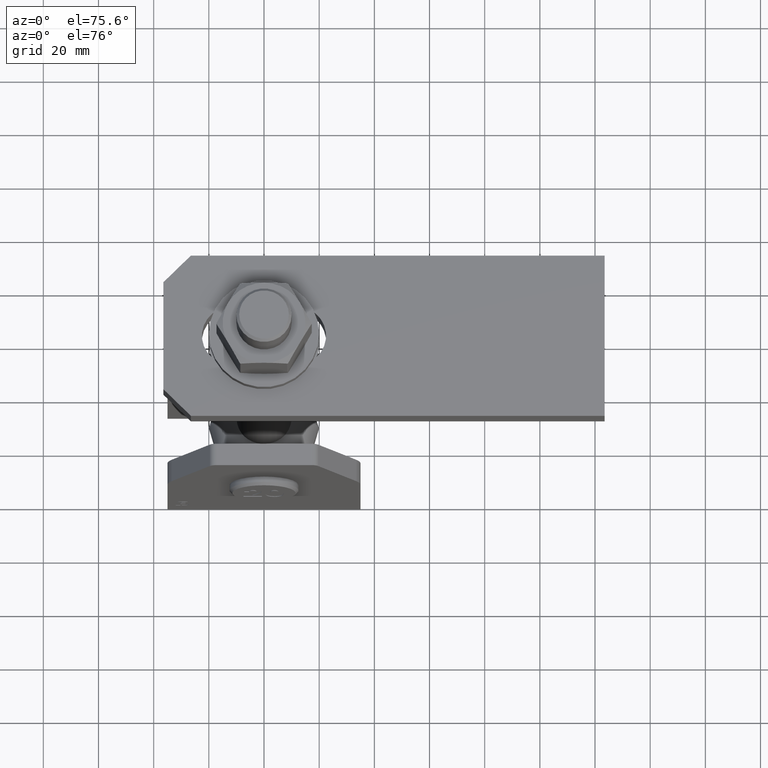
[diagram: clean part render]
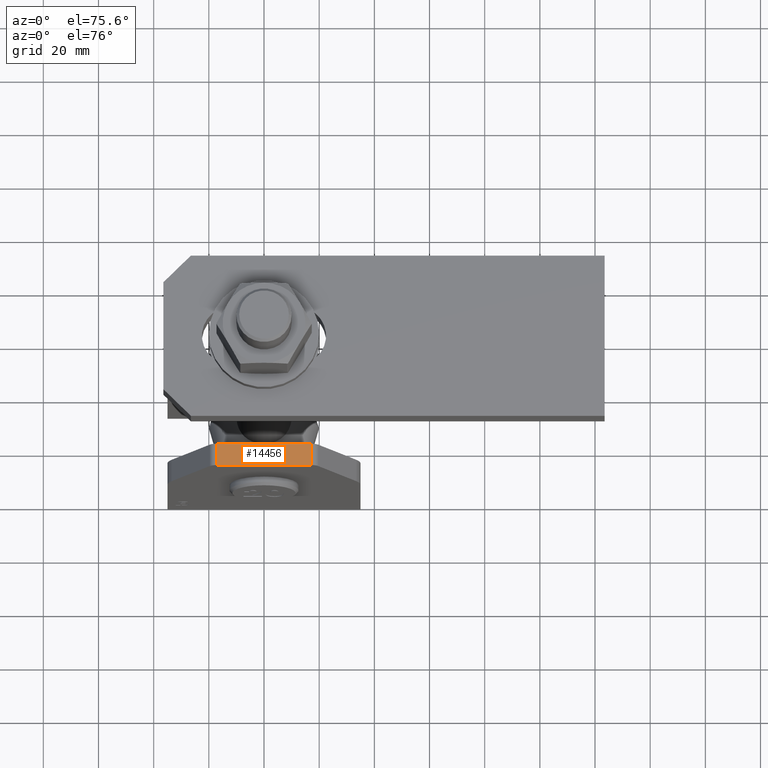
[diagram: same view with one face highlighted and labeled with its STEP entity id]
A machine part, auxiliary view. The second image highlights one B-rep face of the part: STEP entity #14456.
In plain terms, the highlighted planar face has unit normal (-0, 0, -1).
Its self-contained STEP definition (entity closure, byte-faithful):
#1110 = CARTESIAN_POINT ( 'NONE',  ( 17.10000000000000853, 4.000000000000003553, 32.49999999999999289 ) ) ;
#1847 = CARTESIAN_POINT ( 'NONE',  ( -17.09999999999999432, 4.000000000000003553, 32.50000000000000000 ) ) ;
#3083 = DIRECTION ( 'NONE',  ( 1.000000000000000000, -0.000000000000000000, -2.028916346171704184E-16 ) ) ;
#3300 = LINE ( 'NONE', #20559, #17675 ) ;
#3510 = EDGE_CURVE ( 'NONE', #7332, #19962, #3300, .T. ) ;
#3924 = LINE ( 'NONE', #1110, #12240 ) ;
#4564 = LINE ( 'NONE', #14348, #13771 ) ;
#5914 = DIRECTION ( 'NONE',  ( 1.000000000000000000, -0.000000000000000000, -2.028916346171704184E-16 ) ) ;
#7332 = VERTEX_POINT ( 'NONE', #1847 ) ;
#7970 = LINE ( 'NONE', #22036, #9421 ) ;
#9421 = VECTOR ( 'NONE', #20053, 1000.000000000000000 ) ;
#10115 = DIRECTION ( 'NONE',  ( -1.000000000000000000, 0.000000000000000000, 2.028916346171704430E-16 ) ) ;
#11072 = CARTESIAN_POINT ( 'NONE',  ( -17.09999999999999432, -4.000000000000003553, 32.50000000000000000 ) ) ;
#11948 = DIRECTION ( 'NONE',  ( -2.028916346171704430E-16, 0.000000000000000000, -1.000000000000000000 ) ) ;
#11986 = EDGE_CURVE ( 'NONE', #7332, #14732, #7970, .T. ) ;
#12240 = VECTOR ( 'NONE', #12422, 1000.000000000000000 ) ;
#12422 = DIRECTION ( 'NONE',  ( -0.000000000000000000, -1.000000000000000000, -0.000000000000000000 ) ) ;
#12654 = EDGE_LOOP ( 'NONE', ( #13613, #14790, #24023, #13031 ) ) ;
#13031 = ORIENTED_EDGE ( 'NONE', *, *, #11986, .T. ) ;
#13613 = ORIENTED_EDGE ( 'NONE', *, *, #21688, .T. ) ;
#13771 = VECTOR ( 'NONE', #3083, 1000.000000000000000 ) ;
#14348 = CARTESIAN_POINT ( 'NONE',  ( 17.10000000000000853, -4.000000000000003553, 32.49999999999999289 ) ) ;
#14456 = ADVANCED_FACE ( 'NONE', ( #16899 ), #23220, .F. ) ;
#14732 = VERTEX_POINT ( 'NONE', #11072 ) ;
#14790 = ORIENTED_EDGE ( 'NONE', *, *, #22231, .F. ) ;
#15867 = CARTESIAN_POINT ( 'NONE',  ( 17.10000000000000853, 4.000000000000003553, 32.49999999999999289 ) ) ;
#16899 = FACE_OUTER_BOUND ( 'NONE', #12654, .T. ) ;
#17675 = VECTOR ( 'NONE', #5914, 1000.000000000000000 ) ;
#18152 = VERTEX_POINT ( 'NONE', #23197 ) ;
#19400 = AXIS2_PLACEMENT_3D ( 'NONE', #23380, #11948, #10115 ) ;
#19962 = VERTEX_POINT ( 'NONE', #15867 ) ;
#20053 = DIRECTION ( 'NONE',  ( -0.000000000000000000, -1.000000000000000000, -0.000000000000000000 ) ) ;
#20559 = CARTESIAN_POINT ( 'NONE',  ( 17.10000000000000853, 4.000000000000003553, 32.49999999999999289 ) ) ;
#21688 = EDGE_CURVE ( 'NONE', #14732, #18152, #4564, .T. ) ;
#22036 = CARTESIAN_POINT ( 'NONE',  ( -17.09999999999999432, 4.000000000000003553, 32.50000000000000000 ) ) ;
#22231 = EDGE_CURVE ( 'NONE', #19962, #18152, #3924, .T. ) ;
#23197 = CARTESIAN_POINT ( 'NONE',  ( 17.10000000000000853, -4.000000000000003553, 32.49999999999999289 ) ) ;
#23220 = PLANE ( 'NONE',  #19400 ) ;
#23380 = CARTESIAN_POINT ( 'NONE',  ( 17.10000000000000853, 4.000000000000003553, 32.49999999999999289 ) ) ;
#24023 = ORIENTED_EDGE ( 'NONE', *, *, #3510, .F. ) ;